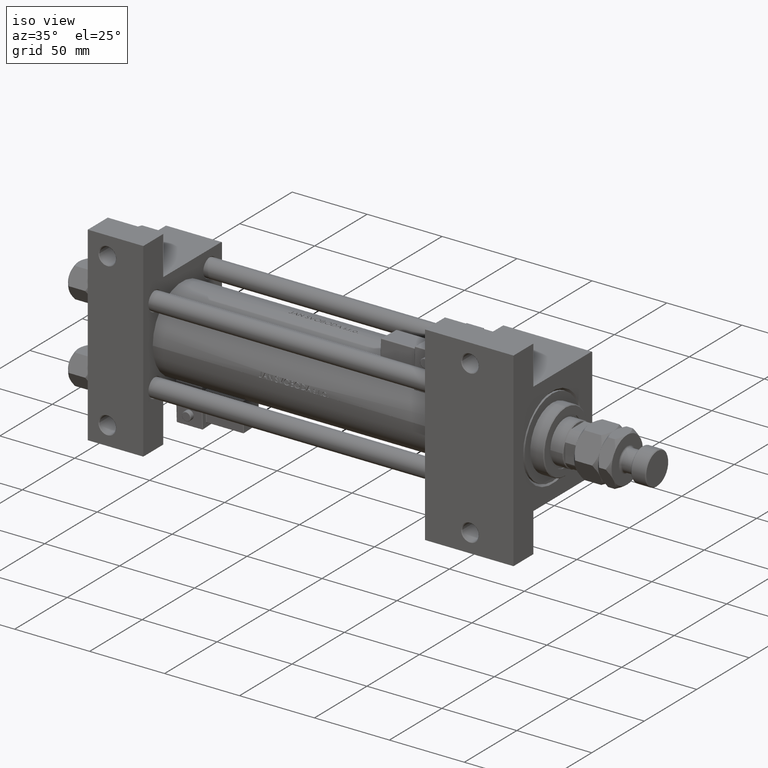
[diagram: clean part render]
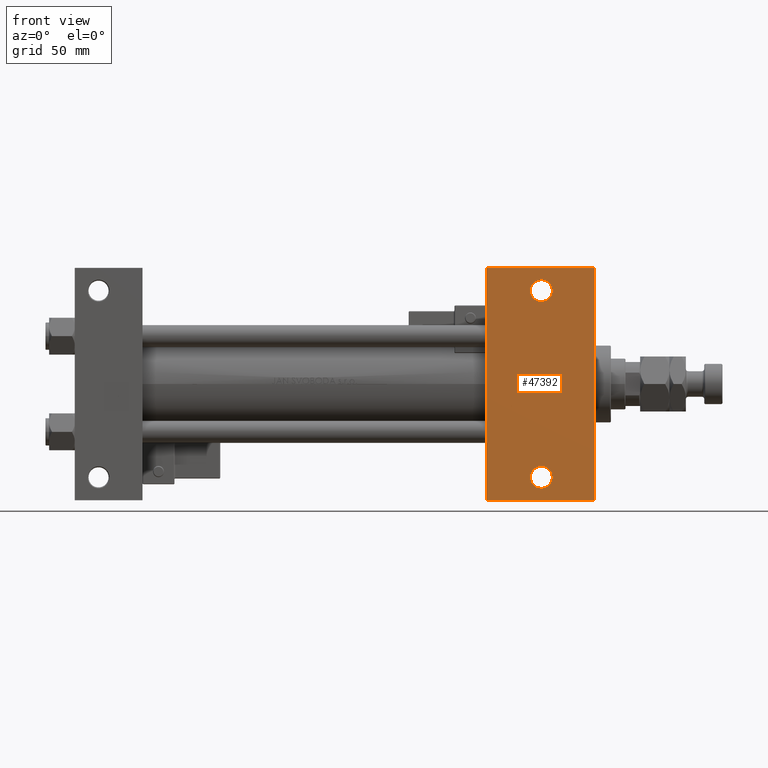
[diagram: tour spotlight — one face highlighted and labeled with its STEP entity id]
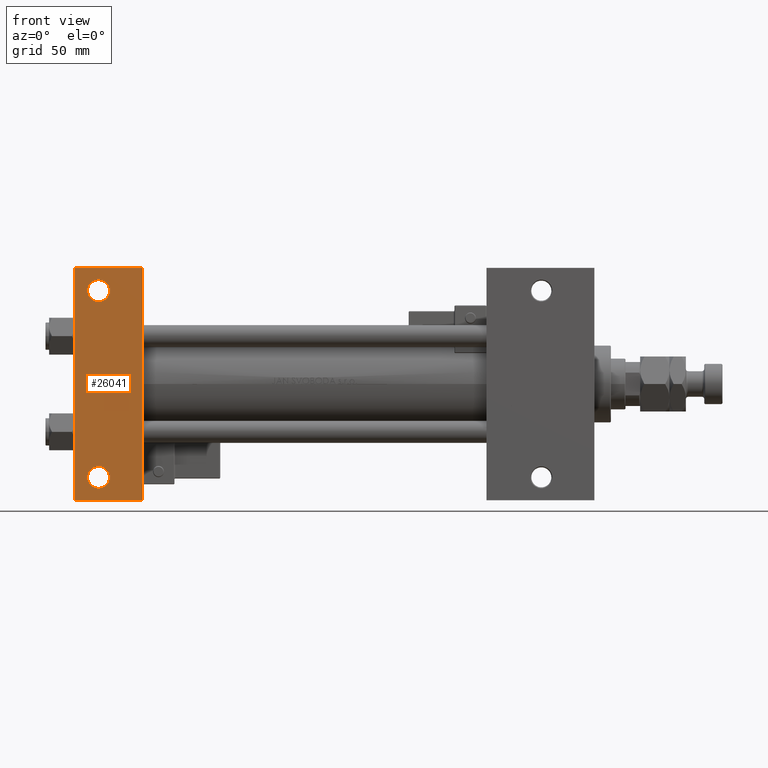
[diagram: tour spotlight — one face highlighted and labeled with its STEP entity id]
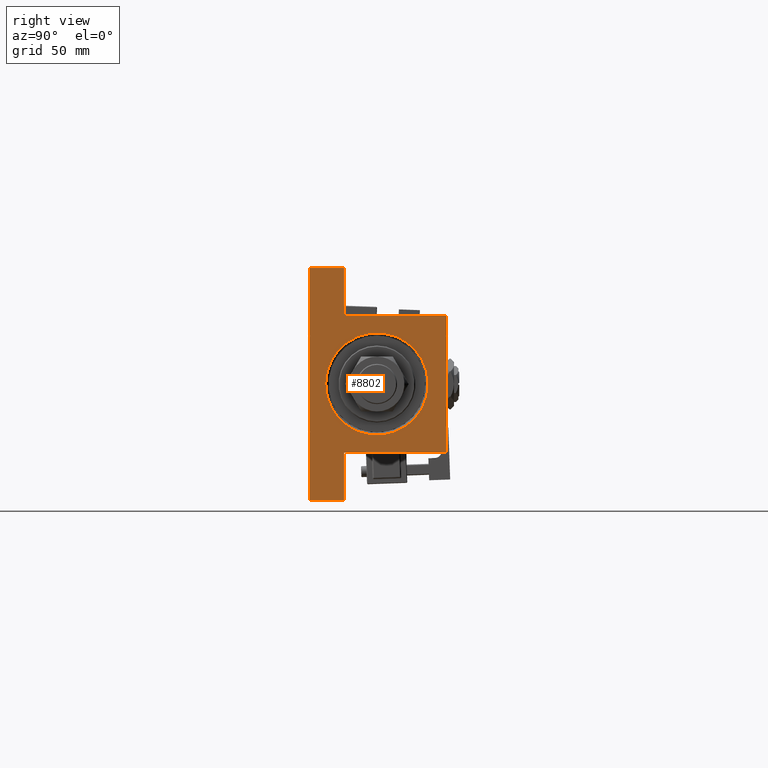
[diagram: tour spotlight — one face highlighted and labeled with its STEP entity id]
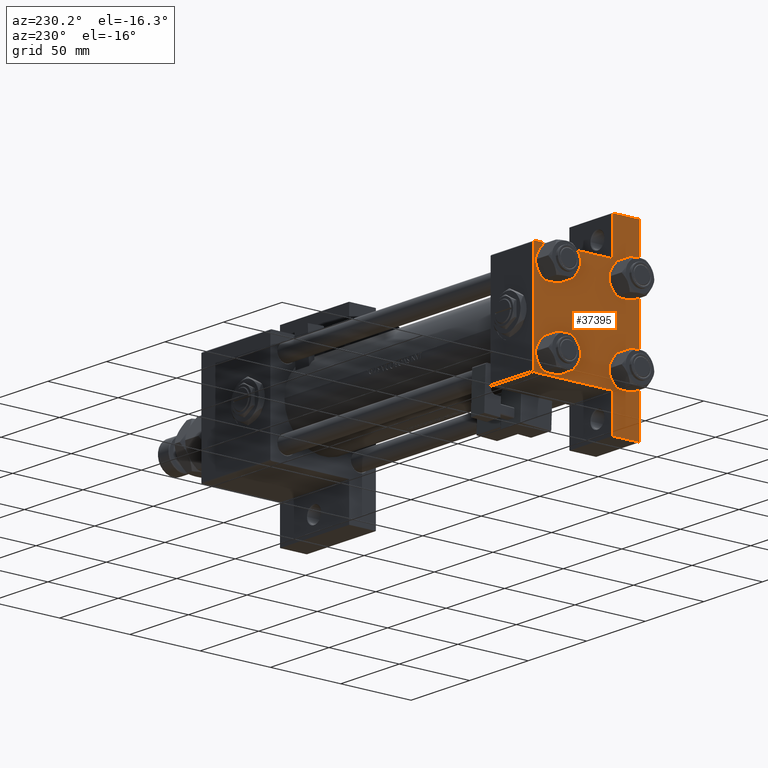
[diagram: tour spotlight — one face highlighted and labeled with its STEP entity id]
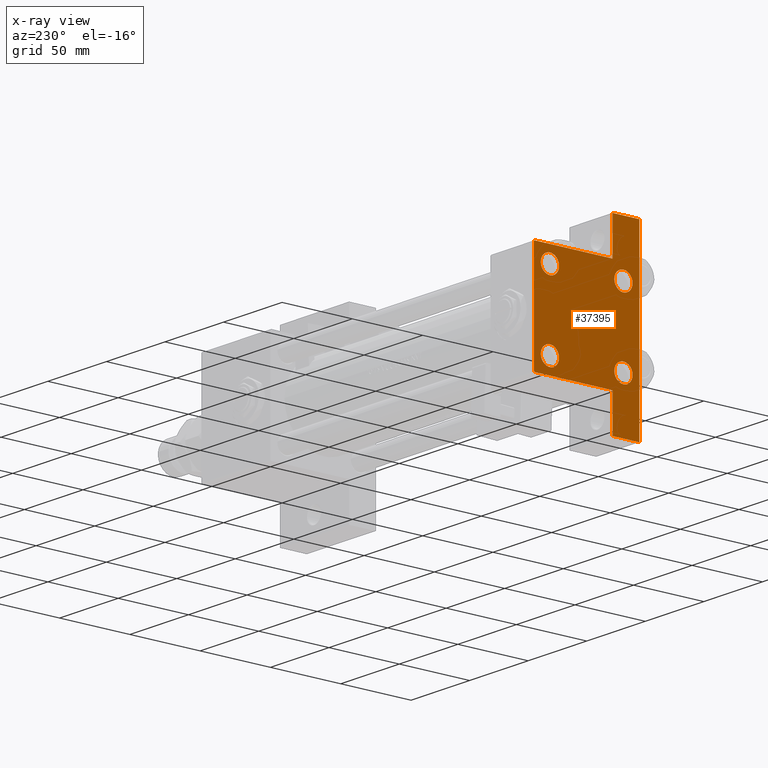
[diagram: x-ray of the same camera — body ghosted, this tour face saturated]
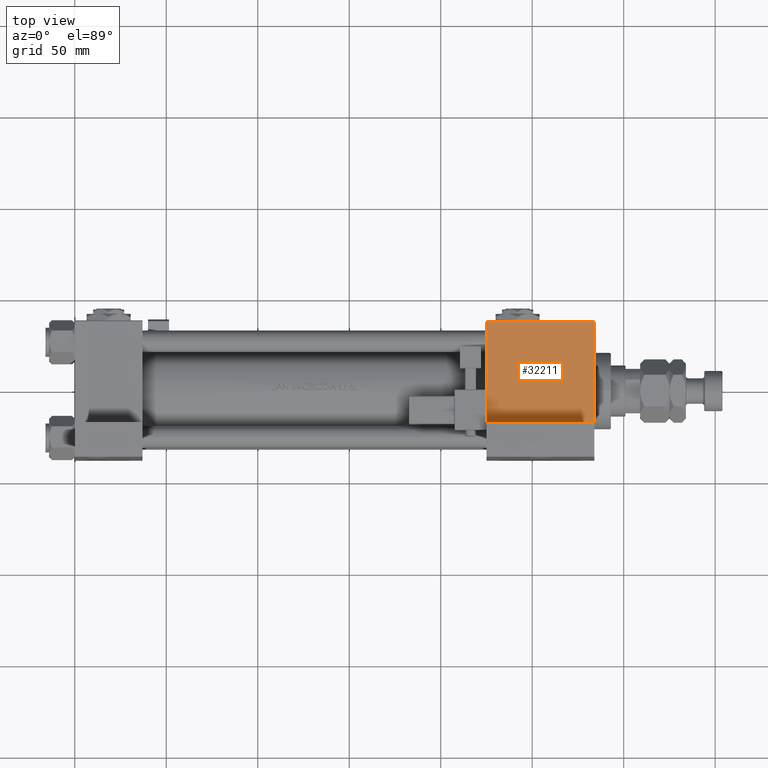
[diagram: tour spotlight — one face highlighted and labeled with its STEP entity id]
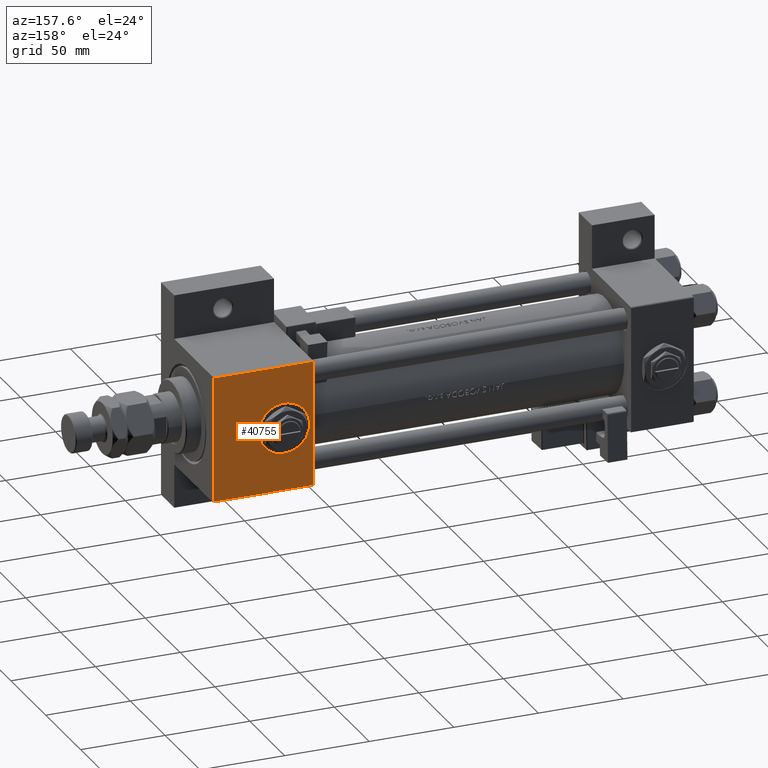
[diagram: tour spotlight — one face highlighted and labeled with its STEP entity id]
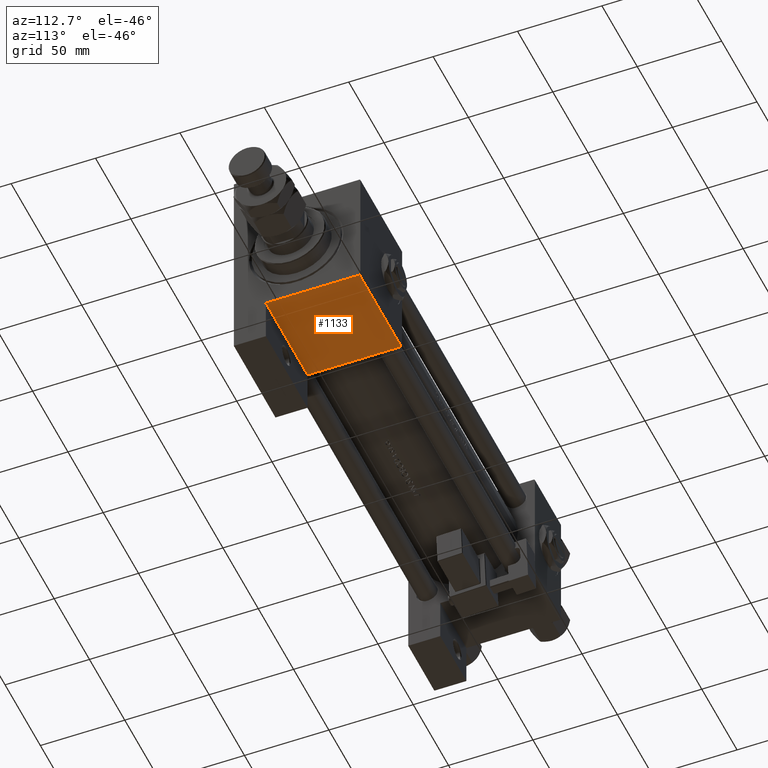
[diagram: tour spotlight — one face highlighted and labeled with its STEP entity id]
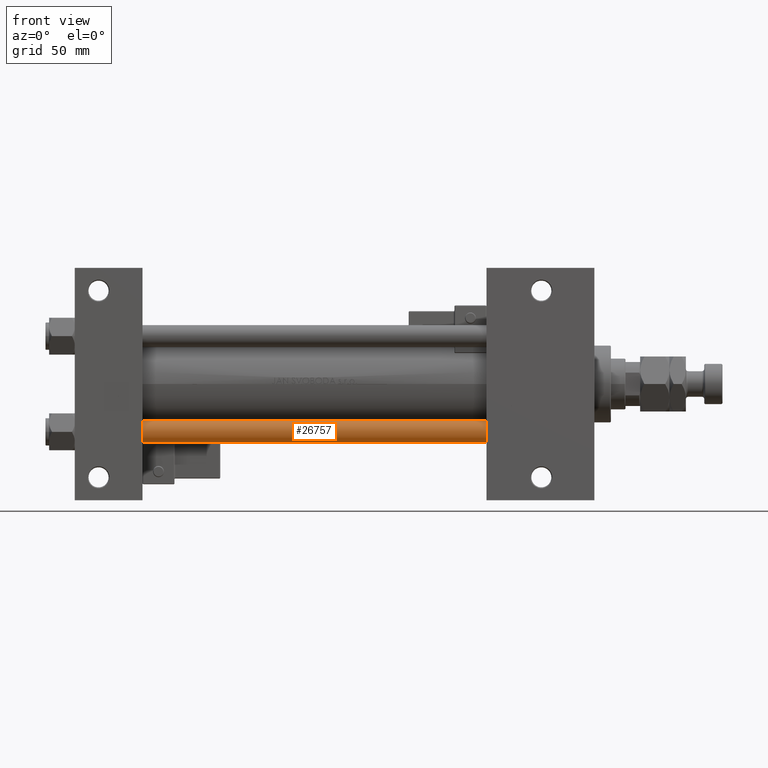
[diagram: tour spotlight — one face highlighted and labeled with its STEP entity id]
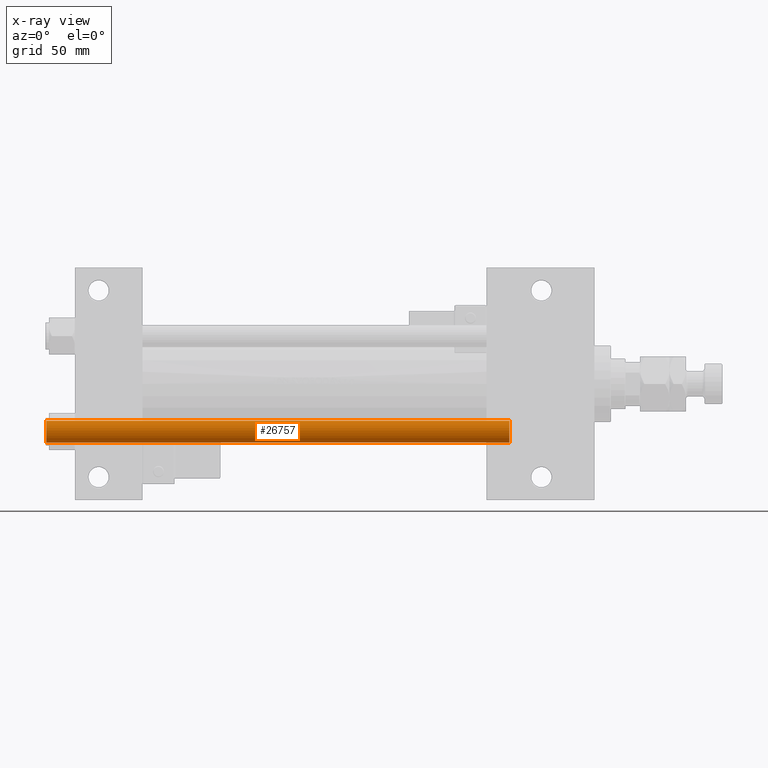
[diagram: x-ray of the same camera — body ghosted, this tour face saturated]
A machine part: a face-by-face anatomy tour. The part has 1378 B-rep faces; the first image is the clean iso view, then the 8 largest visible faces are spotlighted one at a time (largest first), each with its STEP entity span.

Face 1 — front view, entity #47392. In plain terms, the highlighted planar face has unit normal (0, -1, 0).
Definition (entity closure, byte-faithful):
#32 = DIRECTION ( 'NONE',  ( -1.000000000000000000, 0.000000000000000000, 0.000000000000000000 ) ) ;
#74 = EDGE_LOOP ( 'NONE', ( #12143, #51294, #19633, #28781 ) ) ;
#167 = EDGE_LOOP ( 'NONE', ( #16911, #42543 ) ) ;
#186 = EDGE_CURVE ( 'NONE', #19474, #25908, #23796, .T. ) ;
#1146 = CARTESIAN_POINT ( 'NONE',  ( 225.0000000000000284, 63.50000000000000000, -37.50000000000000000 ) ) ;
#1546 = DIRECTION ( 'NONE',  ( -1.000000000000000000, 0.000000000000000000, 0.000000000000000000 ) ) ;
#2528 = LINE ( 'NONE', #47481, #18926 ) ;
#3772 = DIRECTION ( 'NONE',  ( 0.000000000000000000, 0.000000000000000000, -1.000000000000000000 ) ) ;
#3903 = EDGE_CURVE ( 'NONE', #45618, #15442, #31622, .T. ) ;
#7701 = CARTESIAN_POINT ( 'NONE',  ( 225.0000000000000000, -63.50000000000002842, -37.50000000000000000 ) ) ;
#7755 = DIRECTION ( 'NONE',  ( -1.000000000000000000, 0.000000000000000000, 0.000000000000000000 ) ) ;
#8072 = DIRECTION ( 'NONE',  ( 0.000000000000000000, -1.000000000000000000, 0.000000000000000000 ) ) ;
#8718 = CARTESIAN_POINT ( 'NONE',  ( 284.0000000000000568, 63.49999999999997158, -37.50000000000000000 ) ) ;
#8978 = VECTOR ( 'NONE', #19254, 1000.000000000000000 ) ;
#9679 = EDGE_LOOP ( 'NONE', ( #43388, #46269 ) ) ;
#10918 = LINE ( 'NONE', #7701, #33197 ) ;
#11285 = CARTESIAN_POINT ( 'NONE',  ( 255.0000000000000000, -51.00000000000000000, -37.50000000000000000 ) ) ;
#11792 = FACE_BOUND ( 'NONE', #9679, .T. ) ;
#11815 = LINE ( 'NONE', #35615, #16241 ) ;
#12143 = ORIENTED_EDGE ( 'NONE', *, *, #21617, .F. ) ;
#12827 = AXIS2_PLACEMENT_3D ( 'NONE', #46233, #33376, #1546 ) ;
#13506 = AXIS2_PLACEMENT_3D ( 'NONE', #49750, #45736, #16320 ) ;
#13992 = CARTESIAN_POINT ( 'NONE',  ( 249.0005000000000166, -51.00000000000000000, -37.50000000000000000 ) ) ;
#15442 = VERTEX_POINT ( 'NONE', #13992 ) ;
#15729 = DIRECTION ( 'NONE',  ( -1.000000000000000000, -0.000000000000000000, -0.000000000000000000 ) ) ;
#16241 = VECTOR ( 'NONE', #8072, 1000.000000000000000 ) ;
#16320 = DIRECTION ( 'NONE',  ( -1.000000000000000000, 0.000000000000000000, 0.000000000000000000 ) ) ;
#16911 = ORIENTED_EDGE ( 'NONE', *, *, #49615, .T. ) ;
#18926 = VECTOR ( 'NONE', #52557, 1000.000000000000000 ) ;
#19254 = DIRECTION ( 'NONE',  ( 0.000000000000000000, -1.000000000000000000, 0.000000000000000000 ) ) ;
#19474 = VERTEX_POINT ( 'NONE', #22081 ) ;
#19600 = AXIS2_PLACEMENT_3D ( 'NONE', #44428, #3772, #40658 ) ;
#19633 = ORIENTED_EDGE ( 'NONE', *, *, #51910, .T. ) ;
#21617 = EDGE_CURVE ( 'NONE', #26246, #30018, #48689, .T. ) ;
#22081 = CARTESIAN_POINT ( 'NONE',  ( 249.0005000000000166, 51.00000000000000000, -37.50000000000000000 ) ) ;
#23796 = CIRCLE ( 'NONE', #13506, 5.999499999999990507 ) ;
#24327 = PLANE ( 'NONE',  #19600 ) ;
#25691 = CIRCLE ( 'NONE', #40244, 5.999499999999990507 ) ;
#25908 = VERTEX_POINT ( 'NONE', #43048 ) ;
#26246 = VERTEX_POINT ( 'NONE', #1146 ) ;
#26702 = EDGE_CURVE ( 'NONE', #25908, #19474, #32107, .T. ) ;
#26935 = AXIS2_PLACEMENT_3D ( 'NONE', #52698, #44657, #7755 ) ;
#28098 = DIRECTION ( 'NONE',  ( -0.000000000000000000, -0.000000000000000000, 1.000000000000000000 ) ) ;
#28352 = FACE_OUTER_BOUND ( 'NONE', #74, .T. ) ;
#28781 = ORIENTED_EDGE ( 'NONE', *, *, #33466, .T. ) ;
#29024 = CARTESIAN_POINT ( 'NONE',  ( 225.0000000000000000, -63.50000000000002842, -37.50000000000000000 ) ) ;
#29708 = CARTESIAN_POINT ( 'NONE',  ( 284.0000000000000568, -63.50000000000002842, -37.50000000000000000 ) ) ;
#30018 = VERTEX_POINT ( 'NONE', #29024 ) ;
#31622 = CIRCLE ( 'NONE', #12827, 5.999499999999990507 ) ;
#32107 = CIRCLE ( 'NONE', #26935, 5.999499999999990507 ) ;
#32320 = VERTEX_POINT ( 'NONE', #29708 ) ;
#33197 = VECTOR ( 'NONE', #15729, 1000.000000000000000 ) ;
#33376 = DIRECTION ( 'NONE',  ( -0.000000000000000000, -0.000000000000000000, 1.000000000000000000 ) ) ;
#33466 = EDGE_CURVE ( 'NONE', #32320, #30018, #10918, .T. ) ;
#35615 = CARTESIAN_POINT ( 'NONE',  ( 284.0000000000000568, 37.50000000000000000, -37.50000000000000000 ) ) ;
#36968 = VERTEX_POINT ( 'NONE', #8718 ) ;
#40244 = AXIS2_PLACEMENT_3D ( 'NONE', #11285, #28098, #32 ) ;
#40658 = DIRECTION ( 'NONE',  ( -1.000000000000000000, 0.000000000000000000, -0.000000000000000000 ) ) ;
#42543 = ORIENTED_EDGE ( 'NONE', *, *, #3903, .T. ) ;
#42852 = EDGE_CURVE ( 'NONE', #26246, #36968, #2528, .T. ) ;
#43048 = CARTESIAN_POINT ( 'NONE',  ( 260.9995000000000118, 51.00000000000000000, -37.50000000000000000 ) ) ;
#43388 = ORIENTED_EDGE ( 'NONE', *, *, #186, .T. ) ;
#44428 = CARTESIAN_POINT ( 'NONE',  ( 284.0000000000000568, 37.50000000000000000, -37.50000000000000000 ) ) ;
#44657 = DIRECTION ( 'NONE',  ( -0.000000000000000000, -0.000000000000000000, 1.000000000000000000 ) ) ;
#45585 = CARTESIAN_POINT ( 'NONE',  ( 260.9995000000000118, -51.00000000000000000, -37.50000000000000000 ) ) ;
#45618 = VERTEX_POINT ( 'NONE', #45585 ) ;
#45736 = DIRECTION ( 'NONE',  ( -0.000000000000000000, -0.000000000000000000, 1.000000000000000000 ) ) ;
#46233 = CARTESIAN_POINT ( 'NONE',  ( 255.0000000000000000, -51.00000000000000000, -37.50000000000000000 ) ) ;
#46269 = ORIENTED_EDGE ( 'NONE', *, *, #26702, .T. ) ;
#47392 = ADVANCED_FACE ( 'NONE', ( #11792, #48712, #28352 ), #24327, .T. ) ;
#47481 = CARTESIAN_POINT ( 'NONE',  ( 225.0000000000000284, 63.50000000000000000, -37.50000000000000000 ) ) ;
#47897 = CARTESIAN_POINT ( 'NONE',  ( 225.0000000000000000, 37.50000000000000000, -37.50000000000000000 ) ) ;
#48689 = LINE ( 'NONE', #47897, #8978 ) ;
#48712 = FACE_BOUND ( 'NONE', #167, .T. ) ;
#49615 = EDGE_CURVE ( 'NONE', #15442, #45618, #25691, .T. ) ;
#49750 = CARTESIAN_POINT ( 'NONE',  ( 255.0000000000000000, 51.00000000000000000, -37.50000000000000000 ) ) ;
#51294 = ORIENTED_EDGE ( 'NONE', *, *, #42852, .T. ) ;
#51910 = EDGE_CURVE ( 'NONE', #36968, #32320, #11815, .T. ) ;
#52557 = DIRECTION ( 'NONE',  ( 1.000000000000000000, -4.704334850106595794E-16, 0.000000000000000000 ) ) ;
#52698 = CARTESIAN_POINT ( 'NONE',  ( 255.0000000000000000, 51.00000000000000000, -37.50000000000000000 ) ) ;

Face 2 — front view, entity #26041. In plain terms, the highlighted planar face has unit normal (0, -1, -0).
Definition (entity closure, byte-faithful):
#136 = AXIS2_PLACEMENT_3D ( 'NONE', #28142, #32683, #33193 ) ;
#469 = DIRECTION ( 'NONE',  ( 0.000000000000000000, 1.000000000000000000, 0.000000000000000000 ) ) ;
#2412 = EDGE_LOOP ( 'NONE', ( #13057, #4012 ) ) ;
#4012 = ORIENTED_EDGE ( 'NONE', *, *, #41375, .T. ) ;
#4170 = VERTEX_POINT ( 'NONE', #32014 ) ;
#4280 = VECTOR ( 'NONE', #29662, 1000.000000000000000 ) ;
#4486 = CARTESIAN_POINT ( 'NONE',  ( 12.99999999999999822, 50.99999999999997868, -37.50000000000000000 ) ) ;
#4629 = CIRCLE ( 'NONE', #32825, 5.999499999999907907 ) ;
#5586 = CARTESIAN_POINT ( 'NONE',  ( 7.000500000000090317, 50.99999999999997868, -37.50000000000000000 ) ) ;
#5593 = CARTESIAN_POINT ( 'NONE',  ( 37.00000000000001421, 63.50000000000000000, -37.50000000000002132 ) ) ;
#6231 = ORIENTED_EDGE ( 'NONE', *, *, #17479, .T. ) ;
#8796 = EDGE_LOOP ( 'NONE', ( #47439, #6231, #19967, #42008 ) ) ;
#9614 = EDGE_CURVE ( 'NONE', #38967, #40160, #51420, .T. ) ;
#11691 = CARTESIAN_POINT ( 'NONE',  ( 37.00000000000000000, 37.49999999999999289, -37.50000000000000000 ) ) ;
#12557 = LINE ( 'NONE', #28858, #23859 ) ;
#12997 = CARTESIAN_POINT ( 'NONE',  ( 18.99949999999990524, -51.00000000000002842, -37.50000000000000711 ) ) ;
#13057 = ORIENTED_EDGE ( 'NONE', *, *, #40193, .T. ) ;
#15795 = DIRECTION ( 'NONE',  ( 0.000000000000000000, 1.000000000000000000, 0.000000000000000000 ) ) ;
#15800 = LINE ( 'NONE', #32359, #32294 ) ;
#16115 = EDGE_CURVE ( 'NONE', #40160, #38967, #4629, .T. ) ;
#16936 = CARTESIAN_POINT ( 'NONE',  ( 1.595073532467135441E-14, 63.50000000000000000, -37.50000000000002132 ) ) ;
#17313 = FACE_BOUND ( 'NONE', #29550, .T. ) ;
#17479 = EDGE_CURVE ( 'NONE', #45571, #28698, #41650, .T. ) ;
#19967 = ORIENTED_EDGE ( 'NONE', *, *, #36261, .T. ) ;
#20569 = DIRECTION ( 'NONE',  ( -0.000000000000000000, -9.251858538542972814E-17, 1.000000000000000000 ) ) ;
#23859 = VECTOR ( 'NONE', #24845, 1000.000000000000000 ) ;
#24845 = DIRECTION ( 'NONE',  ( -1.000000000000000000, -0.000000000000000000, -0.000000000000000000 ) ) ;
#26041 = ADVANCED_FACE ( 'NONE', ( #38978, #17313, #33623 ), #49963, .T. ) ;
#27358 = CIRCLE ( 'NONE', #43633, 5.999499999999907907 ) ;
#28142 = CARTESIAN_POINT ( 'NONE',  ( 12.99999999999999822, -51.00000000000002842, -37.50000000000000711 ) ) ;
#28200 = AXIS2_PLACEMENT_3D ( 'NONE', #44144, #20569, #15795 ) ;
#28698 = VERTEX_POINT ( 'NONE', #5593 ) ;
#28858 = CARTESIAN_POINT ( 'NONE',  ( 3.977209754999747208E-16, -63.50000000000000000, -37.49999999999999289 ) ) ;
#29550 = EDGE_LOOP ( 'NONE', ( #42061, #34511 ) ) ;
#29662 = DIRECTION ( 'NONE',  ( 0.000000000000000000, -1.000000000000000000, -9.251858538542972814E-17 ) ) ;
#30463 = LINE ( 'NONE', #42773, #4280 ) ;
#30497 = CARTESIAN_POINT ( 'NONE',  ( 7.000500000000090317, -51.00000000000002842, -37.50000000000000711 ) ) ;
#31203 = DIRECTION ( 'NONE',  ( 0.000000000000000000, 9.251858538542972814E-17, -1.000000000000000000 ) ) ;
#31633 = EDGE_CURVE ( 'NONE', #45571, #4170, #15800, .T. ) ;
#32014 = CARTESIAN_POINT ( 'NONE',  ( 3.977209754999747208E-16, -63.50000000000000000, -37.49999999999999289 ) ) ;
#32269 = CARTESIAN_POINT ( 'NONE',  ( 18.99949999999990524, 50.99999999999997868, -37.50000000000000000 ) ) ;
#32294 = VECTOR ( 'NONE', #48448, 1000.000000000000000 ) ;
#32359 = CARTESIAN_POINT ( 'NONE',  ( 0.000000000000000000, 37.49999999999999289, -37.50000000000000000 ) ) ;
#32683 = DIRECTION ( 'NONE',  ( -0.000000000000000000, -9.251858538542972814E-17, 1.000000000000000000 ) ) ;
#32825 = AXIS2_PLACEMENT_3D ( 'NONE', #46859, #34263, #42834 ) ;
#33193 = DIRECTION ( 'NONE',  ( 0.000000000000000000, 1.000000000000000000, 0.000000000000000000 ) ) ;
#33619 = CARTESIAN_POINT ( 'NONE',  ( 1.595073532467135441E-14, 63.50000000000000000, -37.50000000000002132 ) ) ;
#33623 = FACE_OUTER_BOUND ( 'NONE', #8796, .T. ) ;
#34180 = EDGE_CURVE ( 'NONE', #38606, #4170, #12557, .T. ) ;
#34263 = DIRECTION ( 'NONE',  ( -0.000000000000000000, -9.251858538542972814E-17, 1.000000000000000000 ) ) ;
#34511 = ORIENTED_EDGE ( 'NONE', *, *, #9614, .T. ) ;
#35162 = VERTEX_POINT ( 'NONE', #5586 ) ;
#36261 = EDGE_CURVE ( 'NONE', #28698, #38606, #30463, .T. ) ;
#36284 = VECTOR ( 'NONE', #37629, 1000.000000000000000 ) ;
#37082 = DIRECTION ( 'NONE',  ( -0.000000000000000000, -9.251858538542972814E-17, 1.000000000000000000 ) ) ;
#37629 = DIRECTION ( 'NONE',  ( 1.000000000000000000, 0.000000000000000000, 0.000000000000000000 ) ) ;
#38606 = VERTEX_POINT ( 'NONE', #41489 ) ;
#38967 = VERTEX_POINT ( 'NONE', #12997 ) ;
#38978 = FACE_BOUND ( 'NONE', #2412, .T. ) ;
#39011 = VERTEX_POINT ( 'NONE', #32269 ) ;
#39777 = DIRECTION ( 'NONE',  ( 0.000000000000000000, 1.000000000000000000, 9.251858538542972814E-17 ) ) ;
#40160 = VERTEX_POINT ( 'NONE', #30497 ) ;
#40193 = EDGE_CURVE ( 'NONE', #35162, #39011, #51283, .T. ) ;
#41375 = EDGE_CURVE ( 'NONE', #39011, #35162, #27358, .T. ) ;
#41489 = CARTESIAN_POINT ( 'NONE',  ( 37.00000000000000000, -63.50000000000000000, -37.49999999999999289 ) ) ;
#41650 = LINE ( 'NONE', #33619, #36284 ) ;
#42008 = ORIENTED_EDGE ( 'NONE', *, *, #34180, .T. ) ;
#42061 = ORIENTED_EDGE ( 'NONE', *, *, #16115, .T. ) ;
#42773 = CARTESIAN_POINT ( 'NONE',  ( 37.00000000000000000, 37.49999999999999289, -37.50000000000000000 ) ) ;
#42834 = DIRECTION ( 'NONE',  ( 0.000000000000000000, 1.000000000000000000, 0.000000000000000000 ) ) ;
#43633 = AXIS2_PLACEMENT_3D ( 'NONE', #4486, #37082, #469 ) ;
#44144 = CARTESIAN_POINT ( 'NONE',  ( 12.99999999999999822, 50.99999999999997868, -37.50000000000000000 ) ) ;
#45571 = VERTEX_POINT ( 'NONE', #16936 ) ;
#46859 = CARTESIAN_POINT ( 'NONE',  ( 12.99999999999999822, -51.00000000000002842, -37.50000000000000711 ) ) ;
#47439 = ORIENTED_EDGE ( 'NONE', *, *, #31633, .F. ) ;
#48448 = DIRECTION ( 'NONE',  ( 0.000000000000000000, -1.000000000000000000, -9.251858538542972814E-17 ) ) ;
#49963 = PLANE ( 'NONE',  #52606 ) ;
#51283 = CIRCLE ( 'NONE', #28200, 5.999499999999907907 ) ;
#51420 = CIRCLE ( 'NONE', #136, 5.999499999999907907 ) ;
#52606 = AXIS2_PLACEMENT_3D ( 'NONE', #11691, #31203, #39777 ) ;

Face 3 — right view, entity #8802. In plain terms, the highlighted planar face has unit normal (-1, 0, 0).
Definition (entity closure, byte-faithful):
#303 = VERTEX_POINT ( 'NONE', #18152 ) ;
#499 = CARTESIAN_POINT ( 'NONE',  ( 284.0000000000000568, 63.49999999999997158, -18.50000000000000000 ) ) ;
#1682 = VECTOR ( 'NONE', #41414, 1000.000000000000000 ) ;
#2421 = DIRECTION ( 'NONE',  ( 0.000000000000000000, 0.000000000000000000, 1.000000000000000000 ) ) ;
#2623 = CARTESIAN_POINT ( 'NONE',  ( 284.0000000000000568, 63.49999999999997158, -18.50000000000000000 ) ) ;
#2798 = DIRECTION ( 'NONE',  ( 0.000000000000000000, -9.251858538542972814E-17, -1.000000000000000000 ) ) ;
#2844 = EDGE_CURVE ( 'NONE', #303, #36968, #37915, .T. ) ;
#4489 = VECTOR ( 'NONE', #23919, 1000.000000000000114 ) ;
#4847 = VERTEX_POINT ( 'NONE', #51031 ) ;
#5193 = CARTESIAN_POINT ( 'NONE',  ( 284.0000000000000568, -36.99999999999997158, 37.49999999999997868 ) ) ;
#5815 = VERTEX_POINT ( 'NONE', #18924 ) ;
#6592 = DIRECTION ( 'NONE',  ( -0.000000000000000000, -1.000000000000000000, -0.000000000000000000 ) ) ;
#7164 = CIRCLE ( 'NONE', #50722, 28.00000000000005329 ) ;
#8072 = DIRECTION ( 'NONE',  ( 0.000000000000000000, -1.000000000000000000, 0.000000000000000000 ) ) ;
#8211 = EDGE_CURVE ( 'NONE', #48098, #18920, #31410, .T. ) ;
#8718 = CARTESIAN_POINT ( 'NONE',  ( 284.0000000000000568, 63.49999999999997158, -37.50000000000000000 ) ) ;
#8802 = ADVANCED_FACE ( 'NONE', ( #31552, #22475 ), #38802, .F. ) ;
#9082 = LINE ( 'NONE', #49743, #15335 ) ;
#10173 = ORIENTED_EDGE ( 'NONE', *, *, #18671, .T. ) ;
#10444 = CARTESIAN_POINT ( 'NONE',  ( 284.0000000000000568, 0.000000000000000000, -0.5000000000000004441 ) ) ;
#10814 = CARTESIAN_POINT ( 'NONE',  ( 284.0000000000000568, 0.000000000000000000, -0.5000000000000004441 ) ) ;
#11079 = CARTESIAN_POINT ( 'NONE',  ( 284.0000000000000568, -37.50000000000000000, 36.99999999999995026 ) ) ;
#11681 = ORIENTED_EDGE ( 'NONE', *, *, #32968, .T. ) ;
#11815 = LINE ( 'NONE', #35615, #16241 ) ;
#12821 = DIRECTION ( 'NONE',  ( 0.000000000000000000, 0.000000000000000000, -1.000000000000000000 ) ) ;
#12833 = VERTEX_POINT ( 'NONE', #15733 ) ;
#13446 = DIRECTION ( 'NONE',  ( 0.000000000000000000, -0.7071067811865474617, 0.7071067811865474617 ) ) ;
#14257 = LINE ( 'NONE', #45839, #38086 ) ;
#15280 = CARTESIAN_POINT ( 'NONE',  ( 284.0000000000000568, 37.50000000000000000, 37.49999999999999289 ) ) ;
#15335 = VECTOR ( 'NONE', #12821, 1000.000000000000000 ) ;
#15575 = EDGE_LOOP ( 'NONE', ( #10173, #16097 ) ) ;
#15733 = CARTESIAN_POINT ( 'NONE',  ( 284.0000000000000568, 37.50000000000000000, 36.99999999999993605 ) ) ;
#16097 = ORIENTED_EDGE ( 'NONE', *, *, #44108, .T. ) ;
#16241 = VECTOR ( 'NONE', #8072, 1000.000000000000000 ) ;
#16981 = EDGE_CURVE ( 'NONE', #12833, #52814, #33216, .T. ) ;
#18152 = CARTESIAN_POINT ( 'NONE',  ( 284.0000000000000568, 63.49999999999997158, -18.50000000000000000 ) ) ;
#18385 = LINE ( 'NONE', #2623, #41433 ) ;
#18412 = ORIENTED_EDGE ( 'NONE', *, *, #27625, .T. ) ;
#18505 = CARTESIAN_POINT ( 'NONE',  ( 284.0000000000000568, 37.49999999999995026, -18.50000000000000000 ) ) ;
#18671 = EDGE_CURVE ( 'NONE', #51249, #25551, #7164, .T. ) ;
#18920 = VERTEX_POINT ( 'NONE', #11079 ) ;
#18924 = CARTESIAN_POINT ( 'NONE',  ( 284.0000000000000568, -63.50000000000002842, -18.50000000000000000 ) ) ;
#19142 = CARTESIAN_POINT ( 'NONE',  ( 284.0000000000000568, -63.50000000000002842, -18.50000000000000000 ) ) ;
#19239 = EDGE_CURVE ( 'NONE', #47541, #48098, #47668, .T. ) ;
#19872 = EDGE_CURVE ( 'NONE', #18920, #4847, #24167, .T. ) ;
#20608 = ORIENTED_EDGE ( 'NONE', *, *, #19239, .T. ) ;
#21432 = ORIENTED_EDGE ( 'NONE', *, *, #19872, .T. ) ;
#21962 = EDGE_CURVE ( 'NONE', #303, #52814, #18385, .T. ) ;
#22232 = CARTESIAN_POINT ( 'NONE',  ( 284.0000000000000568, 3.429011037612595587E-15, 27.50000000000005329 ) ) ;
#22339 = CIRCLE ( 'NONE', #48018, 28.00000000000005329 ) ;
#22475 = FACE_OUTER_BOUND ( 'NONE', #41024, .T. ) ;
#22985 = DIRECTION ( 'NONE',  ( 0.000000000000000000, 0.000000000000000000, 1.000000000000000000 ) ) ;
#23488 = CARTESIAN_POINT ( 'NONE',  ( 284.0000000000000568, 36.99999999999994316, 37.49999999999999289 ) ) ;
#23919 = DIRECTION ( 'NONE',  ( -0.000000000000000000, -0.7071067811865474617, -0.7071067811865474617 ) ) ;
#24167 = LINE ( 'NONE', #28175, #31090 ) ;
#25551 = VERTEX_POINT ( 'NONE', #22232 ) ;
#26301 = VECTOR ( 'NONE', #6592, 1000.000000000000000 ) ;
#26470 = CARTESIAN_POINT ( 'NONE',  ( 284.0000000000000568, 0.000000000000000000, 0.000000000000000000 ) ) ;
#26725 = DIRECTION ( 'NONE',  ( -1.000000000000000000, -0.000000000000000000, 0.000000000000000000 ) ) ;
#27625 = EDGE_CURVE ( 'NONE', #12833, #47541, #14257, .T. ) ;
#28175 = CARTESIAN_POINT ( 'NONE',  ( 284.0000000000000568, -37.50000000000000000, 37.49999999999997868 ) ) ;
#29708 = CARTESIAN_POINT ( 'NONE',  ( 284.0000000000000568, -63.50000000000002842, -37.50000000000000000 ) ) ;
#30180 = ORIENTED_EDGE ( 'NONE', *, *, #16981, .F. ) ;
#31090 = VECTOR ( 'NONE', #2798, 1000.000000000000000 ) ;
#31326 = DIRECTION ( 'NONE',  ( 0.000000000000000000, -1.000000000000000000, -1.850371707708594316E-16 ) ) ;
#31410 = LINE ( 'NONE', #35691, #4489 ) ;
#31552 = FACE_BOUND ( 'NONE', #15575, .T. ) ;
#32320 = VERTEX_POINT ( 'NONE', #29708 ) ;
#32968 = EDGE_CURVE ( 'NONE', #4847, #5815, #51541, .T. ) ;
#33216 = LINE ( 'NONE', #38027, #43104 ) ;
#33565 = ORIENTED_EDGE ( 'NONE', *, *, #2844, .F. ) ;
#35615 = CARTESIAN_POINT ( 'NONE',  ( 284.0000000000000568, 37.50000000000000000, -37.50000000000000000 ) ) ;
#35691 = CARTESIAN_POINT ( 'NONE',  ( 284.0000000000000568, -37.50000000000000000, 36.99999999999995026 ) ) ;
#36968 = VERTEX_POINT ( 'NONE', #8718 ) ;
#37796 = AXIS2_PLACEMENT_3D ( 'NONE', #26470, #39336, #2421 ) ;
#37915 = LINE ( 'NONE', #499, #1682 ) ;
#37958 = CARTESIAN_POINT ( 'NONE',  ( 284.0000000000000568, 0.000000000000000000, -28.50000000000005329 ) ) ;
#38027 = CARTESIAN_POINT ( 'NONE',  ( 284.0000000000000568, 37.50000000000000000, 37.49999999999999289 ) ) ;
#38086 = VECTOR ( 'NONE', #13446, 1000.000000000000114 ) ;
#38802 = PLANE ( 'NONE',  #37796 ) ;
#39336 = DIRECTION ( 'NONE',  ( -1.000000000000000000, -0.000000000000000000, 0.000000000000000000 ) ) ;
#41017 = ORIENTED_EDGE ( 'NONE', *, *, #21962, .T. ) ;
#41024 = EDGE_LOOP ( 'NONE', ( #30180, #18412, #20608, #47152, #21432, #11681, #45518, #49438, #33565, #41017 ) ) ;
#41315 = VECTOR ( 'NONE', #31326, 1000.000000000000000 ) ;
#41414 = DIRECTION ( 'NONE',  ( 0.000000000000000000, 0.000000000000000000, -1.000000000000000000 ) ) ;
#41433 = VECTOR ( 'NONE', #51311, 1000.000000000000000 ) ;
#42614 = DIRECTION ( 'NONE',  ( 0.000000000000000000, 0.000000000000000000, 1.000000000000000000 ) ) ;
#43104 = VECTOR ( 'NONE', #49311, 1000.000000000000000 ) ;
#44108 = EDGE_CURVE ( 'NONE', #25551, #51249, #22339, .T. ) ;
#45518 = ORIENTED_EDGE ( 'NONE', *, *, #46699, .T. ) ;
#45839 = CARTESIAN_POINT ( 'NONE',  ( 284.0000000000000568, 36.99999999999994316, 37.49999999999999289 ) ) ;
#46699 = EDGE_CURVE ( 'NONE', #5815, #32320, #9082, .T. ) ;
#47152 = ORIENTED_EDGE ( 'NONE', *, *, #8211, .T. ) ;
#47541 = VERTEX_POINT ( 'NONE', #23488 ) ;
#47668 = LINE ( 'NONE', #15280, #41315 ) ;
#48018 = AXIS2_PLACEMENT_3D ( 'NONE', #10444, #26725, #22985 ) ;
#48098 = VERTEX_POINT ( 'NONE', #5193 ) ;
#49311 = DIRECTION ( 'NONE',  ( 0.000000000000000000, 0.000000000000000000, -1.000000000000000000 ) ) ;
#49438 = ORIENTED_EDGE ( 'NONE', *, *, #51910, .F. ) ;
#49743 = CARTESIAN_POINT ( 'NONE',  ( 284.0000000000000568, -63.50000000000002842, -18.50000000000000000 ) ) ;
#50722 = AXIS2_PLACEMENT_3D ( 'NONE', #10814, #50939, #42614 ) ;
#50939 = DIRECTION ( 'NONE',  ( -1.000000000000000000, -0.000000000000000000, 0.000000000000000000 ) ) ;
#51031 = CARTESIAN_POINT ( 'NONE',  ( 284.0000000000000568, -37.50000000000000711, -18.50000000000000355 ) ) ;
#51249 = VERTEX_POINT ( 'NONE', #37958 ) ;
#51311 = DIRECTION ( 'NONE',  ( 0.000000000000000000, -1.000000000000000000, 0.000000000000000000 ) ) ;
#51541 = LINE ( 'NONE', #19142, #26301 ) ;
#51910 = EDGE_CURVE ( 'NONE', #36968, #32320, #11815, .T. ) ;
#52814 = VERTEX_POINT ( 'NONE', #18505 ) ;

Face 4 — auxiliary view, entity #37395. An x-ray twin of the same camera follows (body ghosted, this face saturated) — the face is partly hidden behind the body. In plain terms, the highlighted planar face has unit normal (-1, 0, -0).
Definition (entity closure, byte-faithful):
#782 = VERTEX_POINT ( 'NONE', #36719 ) ;
#918 = DIRECTION ( 'NONE',  ( -2.877097866686192789E-16, -1.000000000000000000, 0.000000000000000000 ) ) ;
#1394 = DIRECTION ( 'NONE',  ( 1.000000000000000000, -0.000000000000000000, 0.000000000000000000 ) ) ;
#1465 = CARTESIAN_POINT ( 'NONE',  ( 3.977209754999744250E-16, -63.49999999999998579, -18.50000000000000355 ) ) ;
#1815 = CIRCLE ( 'NONE', #19757, 6.500000000000015987 ) ;
#2251 = CARTESIAN_POINT ( 'NONE',  ( 0.000000000000000000, 37.49999999999999289, 37.00000000000000000 ) ) ;
#2411 = CARTESIAN_POINT ( 'NONE',  ( 0.000000000000000000, -26.14999999999999147, 26.15000000000000924 ) ) ;
#2554 = DIRECTION ( 'NONE',  ( 0.000000000000000000, 0.000000000000000000, 1.000000000000000000 ) ) ;
#2594 = CARTESIAN_POINT ( 'NONE',  ( 0.000000000000000000, 36.99999999999999289, 37.50000000000000000 ) ) ;
#2599 = ORIENTED_EDGE ( 'NONE', *, *, #24702, .F. ) ;
#3483 = AXIS2_PLACEMENT_3D ( 'NONE', #11065, #48518, #24846 ) ;
#3580 = LINE ( 'NONE', #27085, #30421 ) ;
#4170 = VERTEX_POINT ( 'NONE', #32014 ) ;
#4776 = AXIS2_PLACEMENT_3D ( 'NONE', #26452, #22721, #43317 ) ;
#5106 = CARTESIAN_POINT ( 'NONE',  ( 0.000000000000000000, -26.14999999999999147, 32.65000000000003411 ) ) ;
#7539 = ORIENTED_EDGE ( 'NONE', *, *, #15686, .T. ) ;
#7874 = CARTESIAN_POINT ( 'NONE',  ( 0.000000000000000000, 37.24999999999999289, 37.24999999999999289 ) ) ;
#8664 = LINE ( 'NONE', #36484, #41078 ) ;
#8902 = CIRCLE ( 'NONE', #44812, 6.500000000000015987 ) ;
#9058 = VERTEX_POINT ( 'NONE', #21857 ) ;
#10616 = LINE ( 'NONE', #26897, #49910 ) ;
#11065 = CARTESIAN_POINT ( 'NONE',  ( 0.000000000000000000, 26.14999999999999858, 26.15000000000000213 ) ) ;
#11331 = CARTESIAN_POINT ( 'NONE',  ( 0.000000000000000000, -26.14999999999999147, 19.64999999999999147 ) ) ;
#11357 = LINE ( 'NONE', #7874, #35433 ) ;
#11517 = VERTEX_POINT ( 'NONE', #5106 ) ;
#11814 = DIRECTION ( 'NONE',  ( 0.000000000000000000, -1.000000000000000000, -9.251858538542971581E-17 ) ) ;
#12018 = PLANE ( 'NONE',  #35077 ) ;
#12782 = FACE_BOUND ( 'NONE', #26117, .T. ) ;
#13240 = AXIS2_PLACEMENT_3D ( 'NONE', #40716, #28911, #2554 ) ;
#13576 = ORIENTED_EDGE ( 'NONE', *, *, #16404, .T. ) ;
#14783 = CARTESIAN_POINT ( 'NONE',  ( 3.977209754999747208E-16, -63.49999999999998579, 26.72167621838007889 ) ) ;
#15312 = VECTOR ( 'NONE', #918, 1000.000000000000000 ) ;
#15627 = DIRECTION ( 'NONE',  ( 0.000000000000000000, 0.7071067811865474617, -0.7071067811865474617 ) ) ;
#15686 = EDGE_CURVE ( 'NONE', #40248, #47630, #8902, .T. ) ;
#15731 = DIRECTION ( 'NONE',  ( 1.000000000000000000, -0.000000000000000000, 0.000000000000000000 ) ) ;
#15800 = LINE ( 'NONE', #32359, #32294 ) ;
#16269 = ORIENTED_EDGE ( 'NONE', *, *, #30072, .F. ) ;
#16404 = EDGE_CURVE ( 'NONE', #20874, #43101, #10616, .T. ) ;
#16731 = EDGE_CURVE ( 'NONE', #29029, #41951, #11357, .T. ) ;
#16936 = CARTESIAN_POINT ( 'NONE',  ( 1.595073532467135441E-14, 63.50000000000000000, -37.50000000000002132 ) ) ;
#17163 = EDGE_CURVE ( 'NONE', #29029, #43101, #19293, .T. ) ;
#17239 = CARTESIAN_POINT ( 'NONE',  ( 0.000000000000000000, 26.14999999999999858, -26.15000000000000213 ) ) ;
#17580 = VERTEX_POINT ( 'NONE', #51820 ) ;
#17689 = DIRECTION ( 'NONE',  ( 0.000000000000000000, 0.000000000000000000, 1.000000000000000000 ) ) ;
#17903 = DIRECTION ( 'NONE',  ( 1.000000000000000000, -0.000000000000000000, 0.000000000000000000 ) ) ;
#18221 = DIRECTION ( 'NONE',  ( 0.000000000000000000, -1.734723475976806848E-16, -1.000000000000000000 ) ) ;
#18801 = ORIENTED_EDGE ( 'NONE', *, *, #31633, .T. ) ;
#19293 = LINE ( 'NONE', #28378, #34545 ) ;
#19323 = VERTEX_POINT ( 'NONE', #36406 ) ;
#19757 = AXIS2_PLACEMENT_3D ( 'NONE', #45812, #1394, #17689 ) ;
#20030 = DIRECTION ( 'NONE',  ( -0.000000000000000000, 0.000000000000000000, 1.000000000000000000 ) ) ;
#20056 = CARTESIAN_POINT ( 'NONE',  ( 0.000000000000000000, -26.14999999999999147, -19.64999999999999503 ) ) ;
#20243 = CARTESIAN_POINT ( 'NONE',  ( 0.000000000000000000, 26.14999999999999858, 26.15000000000000213 ) ) ;
#20798 = FACE_BOUND ( 'NONE', #28126, .T. ) ;
#20874 = VERTEX_POINT ( 'NONE', #20928 ) ;
#20928 = CARTESIAN_POINT ( 'NONE',  ( 0.000000000000000000, -37.50000000000000711, 36.99999999999999289 ) ) ;
#21104 = EDGE_LOOP ( 'NONE', ( #30971, #36713 ) ) ;
#21203 = EDGE_CURVE ( 'NONE', #11517, #33689, #29429, .T. ) ;
#21857 = CARTESIAN_POINT ( 'NONE',  ( 0.000000000000000000, 26.14999999999999858, 32.65000000000002700 ) ) ;
#22221 = CIRCLE ( 'NONE', #3483, 6.500000000000023093 ) ;
#22420 = EDGE_CURVE ( 'NONE', #33689, #11517, #36329, .T. ) ;
#22721 = DIRECTION ( 'NONE',  ( 1.000000000000000000, -0.000000000000000000, 0.000000000000000000 ) ) ;
#23661 = ORIENTED_EDGE ( 'NONE', *, *, #21203, .T. ) ;
#24271 = ORIENTED_EDGE ( 'NONE', *, *, #40508, .T. ) ;
#24294 = DIRECTION ( 'NONE',  ( -1.000000000000000000, 0.000000000000000000, -0.000000000000000000 ) ) ;
#24702 = EDGE_CURVE ( 'NONE', #20874, #42441, #3580, .T. ) ;
#24846 = DIRECTION ( 'NONE',  ( 0.000000000000000000, 0.000000000000000000, 1.000000000000000000 ) ) ;
#25074 = FACE_OUTER_BOUND ( 'NONE', #28704, .T. ) ;
#25370 = CARTESIAN_POINT ( 'NONE',  ( 0.000000000000000000, 37.49999999999999289, -18.49999999999999645 ) ) ;
#25382 = ORIENTED_EDGE ( 'NONE', *, *, #22420, .T. ) ;
#26117 = EDGE_LOOP ( 'NONE', ( #7539, #39657 ) ) ;
#26204 = CARTESIAN_POINT ( 'NONE',  ( 0.000000000000000000, -26.14999999999999147, -26.15000000000000924 ) ) ;
#26452 = CARTESIAN_POINT ( 'NONE',  ( 0.000000000000000000, -26.14999999999999147, -26.15000000000000924 ) ) ;
#26554 = LINE ( 'NONE', #34041, #15312 ) ;
#26629 = EDGE_CURVE ( 'NONE', #47630, #40248, #27829, .T. ) ;
#26803 = LINE ( 'NONE', #14783, #28163 ) ;
#26897 = CARTESIAN_POINT ( 'NONE',  ( -0.000000000000000000, -37.25000000000000000, 37.25000000000000000 ) ) ;
#27085 = CARTESIAN_POINT ( 'NONE',  ( 0.000000000000000000, -37.50000000000000711, 37.49999999999999289 ) ) ;
#27707 = VERTEX_POINT ( 'NONE', #29912 ) ;
#27829 = CIRCLE ( 'NONE', #4776, 6.500000000000015987 ) ;
#28126 = EDGE_LOOP ( 'NONE', ( #23661, #25382 ) ) ;
#28163 = VECTOR ( 'NONE', #43130, 1000.000000000000000 ) ;
#28378 = CARTESIAN_POINT ( 'NONE',  ( 0.000000000000000000, 37.49999999999999289, 37.50000000000000000 ) ) ;
#28483 = CARTESIAN_POINT ( 'NONE',  ( 1.595073532467135441E-14, 63.50000000000000000, -18.50000000000000355 ) ) ;
#28704 = EDGE_LOOP ( 'NONE', ( #2599, #13576, #37728, #30459, #35824, #46623, #41064, #18801, #39172, #16269 ) ) ;
#28754 = DIRECTION ( 'NONE',  ( 0.000000000000000000, 0.000000000000000000, 1.000000000000000000 ) ) ;
#28911 = DIRECTION ( 'NONE',  ( 1.000000000000000000, -0.000000000000000000, 0.000000000000000000 ) ) ;
#29029 = VERTEX_POINT ( 'NONE', #2594 ) ;
#29277 = DIRECTION ( 'NONE',  ( 1.000000000000000000, -0.000000000000000000, 0.000000000000000000 ) ) ;
#29353 = FACE_BOUND ( 'NONE', #48312, .T. ) ;
#29429 = CIRCLE ( 'NONE', #51664, 6.500000000000023093 ) ;
#29447 = DIRECTION ( 'NONE',  ( 1.000000000000000000, -0.000000000000000000, 0.000000000000000000 ) ) ;
#29912 = CARTESIAN_POINT ( 'NONE',  ( 3.977209754999747208E-16, -63.50000000000000000, -18.50000000000000355 ) ) ;
#29935 = AXIS2_PLACEMENT_3D ( 'NONE', #20243, #15731, #35773 ) ;
#30020 = AXIS2_PLACEMENT_3D ( 'NONE', #17239, #29277, #28754 ) ;
#30072 = EDGE_CURVE ( 'NONE', #42441, #27707, #38102, .T. ) ;
#30421 = VECTOR ( 'NONE', #47721, 1000.000000000000000 ) ;
#30459 = ORIENTED_EDGE ( 'NONE', *, *, #16731, .T. ) ;
#30861 = VECTOR ( 'NONE', #18221, 1000.000000000000000 ) ;
#30971 = ORIENTED_EDGE ( 'NONE', *, *, #42663, .T. ) ;
#31062 = CARTESIAN_POINT ( 'NONE',  ( 1.595073532467135441E-14, 63.50000000000001421, 26.72167621838005047 ) ) ;
#31633 = EDGE_CURVE ( 'NONE', #45571, #4170, #15800, .T. ) ;
#32014 = CARTESIAN_POINT ( 'NONE',  ( 3.977209754999747208E-16, -63.50000000000000000, -37.49999999999999289 ) ) ;
#32294 = VECTOR ( 'NONE', #48448, 1000.000000000000000 ) ;
#32359 = CARTESIAN_POINT ( 'NONE',  ( 0.000000000000000000, 37.49999999999999289, -37.50000000000000000 ) ) ;
#33361 = FACE_BOUND ( 'NONE', #21104, .T. ) ;
#33460 = DIRECTION ( 'NONE',  ( 0.000000000000000000, 0.000000000000000000, 1.000000000000000000 ) ) ;
#33689 = VERTEX_POINT ( 'NONE', #11331 ) ;
#34041 = CARTESIAN_POINT ( 'NONE',  ( 1.595073532467135757E-14, 63.50000000000001421, -18.50000000000000355 ) ) ;
#34264 = LINE ( 'NONE', #31062, #30861 ) ;
#34545 = VECTOR ( 'NONE', #11814, 1000.000000000000000 ) ;
#34795 = EDGE_CURVE ( 'NONE', #47953, #35089, #26554, .T. ) ;
#35077 = AXIS2_PLACEMENT_3D ( 'NONE', #41148, #24294, #20030 ) ;
#35089 = VERTEX_POINT ( 'NONE', #25370 ) ;
#35433 = VECTOR ( 'NONE', #15627, 1000.000000000000114 ) ;
#35773 = DIRECTION ( 'NONE',  ( 0.000000000000000000, 0.000000000000000000, 1.000000000000000000 ) ) ;
#35824 = ORIENTED_EDGE ( 'NONE', *, *, #38179, .T. ) ;
#35996 = CIRCLE ( 'NONE', #30020, 6.500000000000015987 ) ;
#36329 = CIRCLE ( 'NONE', #13240, 6.500000000000023093 ) ;
#36406 = CARTESIAN_POINT ( 'NONE',  ( 0.000000000000000000, 26.14999999999999858, 19.64999999999998437 ) ) ;
#36484 = CARTESIAN_POINT ( 'NONE',  ( 0.000000000000000000, 37.49999999999999289, 37.50000000000000000 ) ) ;
#36713 = ORIENTED_EDGE ( 'NONE', *, *, #43040, .T. ) ;
#36719 = CARTESIAN_POINT ( 'NONE',  ( 0.000000000000000000, 26.14999999999999858, -32.65000000000001990 ) ) ;
#37395 = ADVANCED_FACE ( 'NONE', ( #20798, #12782, #33361, #29353, #25074 ), #12018, .T. ) ;
#37728 = ORIENTED_EDGE ( 'NONE', *, *, #17163, .F. ) ;
#38102 = LINE ( 'NONE', #1465, #44187 ) ;
#38179 = EDGE_CURVE ( 'NONE', #41951, #35089, #8664, .T. ) ;
#38348 = EDGE_CURVE ( 'NONE', #27707, #4170, #26803, .T. ) ;
#38698 = CARTESIAN_POINT ( 'NONE',  ( -7.145701223179004046E-16, -37.50000000000000711, -18.50000000000000355 ) ) ;
#39172 = ORIENTED_EDGE ( 'NONE', *, *, #38348, .F. ) ;
#39657 = ORIENTED_EDGE ( 'NONE', *, *, #26629, .T. ) ;
#39973 = DIRECTION ( 'NONE',  ( 0.000000000000000000, 0.000000000000000000, -1.000000000000000000 ) ) ;
#40072 = CARTESIAN_POINT ( 'NONE',  ( 0.000000000000000000, -26.14999999999999147, -32.65000000000002700 ) ) ;
#40248 = VERTEX_POINT ( 'NONE', #20056 ) ;
#40508 = EDGE_CURVE ( 'NONE', #19323, #9058, #46194, .T. ) ;
#40716 = CARTESIAN_POINT ( 'NONE',  ( 0.000000000000000000, -26.14999999999999147, 26.15000000000000924 ) ) ;
#41064 = ORIENTED_EDGE ( 'NONE', *, *, #50888, .T. ) ;
#41078 = VECTOR ( 'NONE', #39973, 1000.000000000000000 ) ;
#41096 = EDGE_CURVE ( 'NONE', #9058, #19323, #22221, .T. ) ;
#41148 = CARTESIAN_POINT ( 'NONE',  ( 0.000000000000000000, 0.000000000000000000, 0.000000000000000000 ) ) ;
#41951 = VERTEX_POINT ( 'NONE', #2251 ) ;
#42257 = DIRECTION ( 'NONE',  ( 0.000000000000000000, 0.000000000000000000, 1.000000000000000000 ) ) ;
#42441 = VERTEX_POINT ( 'NONE', #38698 ) ;
#42663 = EDGE_CURVE ( 'NONE', #17580, #782, #35996, .T. ) ;
#43040 = EDGE_CURVE ( 'NONE', #782, #17580, #1815, .T. ) ;
#43101 = VERTEX_POINT ( 'NONE', #48142 ) ;
#43130 = DIRECTION ( 'NONE',  ( 0.000000000000000000, -1.734723475976806848E-16, -1.000000000000000000 ) ) ;
#43317 = DIRECTION ( 'NONE',  ( 0.000000000000000000, 0.000000000000000000, 1.000000000000000000 ) ) ;
#44187 = VECTOR ( 'NONE', #49379, 1000.000000000000000 ) ;
#44812 = AXIS2_PLACEMENT_3D ( 'NONE', #26204, #29447, #33460 ) ;
#45571 = VERTEX_POINT ( 'NONE', #16936 ) ;
#45812 = CARTESIAN_POINT ( 'NONE',  ( 0.000000000000000000, 26.14999999999999858, -26.15000000000000213 ) ) ;
#46194 = CIRCLE ( 'NONE', #29935, 6.500000000000023093 ) ;
#46623 = ORIENTED_EDGE ( 'NONE', *, *, #34795, .F. ) ;
#46998 = DIRECTION ( 'NONE',  ( -0.000000000000000000, 0.7071067811865474617, 0.7071067811865474617 ) ) ;
#47630 = VERTEX_POINT ( 'NONE', #40072 ) ;
#47721 = DIRECTION ( 'NONE',  ( 0.000000000000000000, 9.251858538542971581E-17, -1.000000000000000000 ) ) ;
#47953 = VERTEX_POINT ( 'NONE', #28483 ) ;
#48142 = CARTESIAN_POINT ( 'NONE',  ( 0.000000000000000000, -37.00000000000000711, 37.49999999999999289 ) ) ;
#48312 = EDGE_LOOP ( 'NONE', ( #49643, #24271 ) ) ;
#48448 = DIRECTION ( 'NONE',  ( 0.000000000000000000, -1.000000000000000000, -9.251858538542972814E-17 ) ) ;
#48518 = DIRECTION ( 'NONE',  ( 1.000000000000000000, -0.000000000000000000, 0.000000000000000000 ) ) ;
#49379 = DIRECTION ( 'NONE',  ( 4.278042683914906889E-17, -1.000000000000000000, 0.000000000000000000 ) ) ;
#49643 = ORIENTED_EDGE ( 'NONE', *, *, #41096, .T. ) ;
#49910 = VECTOR ( 'NONE', #46998, 1000.000000000000114 ) ;
#50888 = EDGE_CURVE ( 'NONE', #47953, #45571, #34264, .T. ) ;
#51664 = AXIS2_PLACEMENT_3D ( 'NONE', #2411, #17903, #42257 ) ;
#51820 = CARTESIAN_POINT ( 'NONE',  ( 0.000000000000000000, 26.14999999999999858, -19.64999999999998792 ) ) ;

Face 5 — top view, entity #32211. In plain terms, the highlighted planar face has unit normal (0, -0, -1).
Definition (entity closure, byte-faithful):
#1055 = EDGE_CURVE ( 'NONE', #18920, #40919, #33350, .T. ) ;
#2604 = LINE ( 'NONE', #39513, #51734 ) ;
#2798 = DIRECTION ( 'NONE',  ( 0.000000000000000000, -9.251858538542972814E-17, -1.000000000000000000 ) ) ;
#2868 = DIRECTION ( 'NONE',  ( 1.000000000000000000, -1.176083712526648456E-16, 0.000000000000000000 ) ) ;
#3934 = EDGE_LOOP ( 'NONE', ( #8633, #4239, #45390, #5697 ) ) ;
#4239 = ORIENTED_EDGE ( 'NONE', *, *, #1055, .T. ) ;
#4757 = CARTESIAN_POINT ( 'NONE',  ( 284.0000000000000568, -37.50000000000000000, 36.99999999999995026 ) ) ;
#4847 = VERTEX_POINT ( 'NONE', #51031 ) ;
#5697 = ORIENTED_EDGE ( 'NONE', *, *, #17656, .T. ) ;
#7111 = LINE ( 'NONE', #23664, #11603 ) ;
#8633 = ORIENTED_EDGE ( 'NONE', *, *, #19872, .F. ) ;
#11079 = CARTESIAN_POINT ( 'NONE',  ( 284.0000000000000568, -37.50000000000000000, 36.99999999999995026 ) ) ;
#11603 = VECTOR ( 'NONE', #24198, 1000.000000000000000 ) ;
#13692 = CARTESIAN_POINT ( 'NONE',  ( 225.0000000000000000, -37.50000000000000000, -18.50000000000000000 ) ) ;
#17284 = PLANE ( 'NONE',  #31438 ) ;
#17656 = EDGE_CURVE ( 'NONE', #52700, #4847, #2604, .T. ) ;
#18920 = VERTEX_POINT ( 'NONE', #11079 ) ;
#19872 = EDGE_CURVE ( 'NONE', #18920, #4847, #24167, .T. ) ;
#23228 = EDGE_CURVE ( 'NONE', #40919, #52700, #7111, .T. ) ;
#23664 = CARTESIAN_POINT ( 'NONE',  ( 225.0000000000000000, -37.50000000000000000, 37.49999999999997868 ) ) ;
#24167 = LINE ( 'NONE', #28175, #31090 ) ;
#24198 = DIRECTION ( 'NONE',  ( 0.000000000000000000, -9.251858538542972814E-17, -1.000000000000000000 ) ) ;
#28175 = CARTESIAN_POINT ( 'NONE',  ( 284.0000000000000568, -37.50000000000000000, 37.49999999999997868 ) ) ;
#28674 = DIRECTION ( 'NONE',  ( 0.000000000000000000, 1.000000000000000000, -9.251858538542972814E-17 ) ) ;
#31090 = VECTOR ( 'NONE', #2798, 1000.000000000000000 ) ;
#31438 = AXIS2_PLACEMENT_3D ( 'NONE', #49936, #28674, #44760 ) ;
#32211 = ADVANCED_FACE ( 'NONE', ( #33600 ), #17284, .F. ) ;
#33350 = LINE ( 'NONE', #4757, #41769 ) ;
#33600 = FACE_OUTER_BOUND ( 'NONE', #3934, .T. ) ;
#37270 = CARTESIAN_POINT ( 'NONE',  ( 225.0000000000000000, -37.50000000000000000, 36.99999999999995026 ) ) ;
#39513 = CARTESIAN_POINT ( 'NONE',  ( 225.0000000000000000, -37.50000000000000000, -18.50000000000000000 ) ) ;
#40919 = VERTEX_POINT ( 'NONE', #37270 ) ;
#41769 = VECTOR ( 'NONE', #49695, 1000.000000000000000 ) ;
#44760 = DIRECTION ( 'NONE',  ( 0.000000000000000000, 9.251858538542972814E-17, 1.000000000000000000 ) ) ;
#45390 = ORIENTED_EDGE ( 'NONE', *, *, #23228, .T. ) ;
#49695 = DIRECTION ( 'NONE',  ( -1.000000000000000000, 0.000000000000000000, 0.000000000000000000 ) ) ;
#49936 = CARTESIAN_POINT ( 'NONE',  ( 284.0000000000000568, -37.50000000000000000, 37.49999999999997868 ) ) ;
#51031 = CARTESIAN_POINT ( 'NONE',  ( 284.0000000000000568, -37.50000000000000711, -18.50000000000000355 ) ) ;
#51734 = VECTOR ( 'NONE', #2868, 1000.000000000000000 ) ;
#52700 = VERTEX_POINT ( 'NONE', #13692 ) ;

Face 6 — auxiliary view, entity #40755. In plain terms, the highlighted planar face has unit normal (0, -1, -0).
Definition (entity closure, byte-faithful):
#645 = CARTESIAN_POINT ( 'NONE',  ( 284.0000000000000568, -36.99999999999997158, 37.49999999999997868 ) ) ;
#1733 = AXIS2_PLACEMENT_3D ( 'NONE', #44816, #12179, #23935 ) ;
#1795 = VECTOR ( 'NONE', #30089, 1000.000000000000000 ) ;
#4662 = DIRECTION ( 'NONE',  ( 0.000000000000000000, 0.000000000000000000, 1.000000000000000000 ) ) ;
#5193 = CARTESIAN_POINT ( 'NONE',  ( 284.0000000000000568, -36.99999999999997158, 37.49999999999997868 ) ) ;
#5382 = EDGE_LOOP ( 'NONE', ( #40341, #6697, #10566, #7708 ) ) ;
#6062 = EDGE_CURVE ( 'NONE', #47541, #40184, #21257, .T. ) ;
#6697 = ORIENTED_EDGE ( 'NONE', *, *, #6062, .T. ) ;
#7708 = ORIENTED_EDGE ( 'NONE', *, *, #31136, .T. ) ;
#8415 = DIRECTION ( 'NONE',  ( 1.000000000000000000, 0.000000000000000000, 0.000000000000000000 ) ) ;
#9456 = DIRECTION ( 'NONE',  ( 1.000000000000000000, 0.000000000000000000, 0.000000000000000000 ) ) ;
#9775 = CARTESIAN_POINT ( 'NONE',  ( 225.0000000000000000, 36.99999999999994316, 37.49999999999999289 ) ) ;
#10356 = EDGE_LOOP ( 'NONE', ( #39521, #16385 ) ) ;
#10566 = ORIENTED_EDGE ( 'NONE', *, *, #41164, .T. ) ;
#12179 = DIRECTION ( 'NONE',  ( 0.000000000000000000, 1.850371707708594316E-16, -1.000000000000000000 ) ) ;
#12622 = CARTESIAN_POINT ( 'NONE',  ( 225.0000000000000000, -36.99999999999997158, 37.49999999999997868 ) ) ;
#15280 = CARTESIAN_POINT ( 'NONE',  ( 284.0000000000000568, 37.50000000000000000, 37.49999999999999289 ) ) ;
#15744 = CARTESIAN_POINT ( 'NONE',  ( 257.0000000000000000, -6.938893903907226011E-15, 37.49999999999998579 ) ) ;
#15785 = DIRECTION ( 'NONE',  ( 0.000000000000000000, 0.000000000000000000, 1.000000000000000000 ) ) ;
#16385 = ORIENTED_EDGE ( 'NONE', *, *, #45624, .F. ) ;
#19239 = EDGE_CURVE ( 'NONE', #47541, #48098, #47668, .T. ) ;
#21087 = CARTESIAN_POINT ( 'NONE',  ( 225.0000000000000000, 37.50000000000000000, 37.49999999999999289 ) ) ;
#21257 = LINE ( 'NONE', #9775, #1795 ) ;
#23488 = CARTESIAN_POINT ( 'NONE',  ( 284.0000000000000568, 36.99999999999994316, 37.49999999999999289 ) ) ;
#23935 = DIRECTION ( 'NONE',  ( 0.000000000000000000, 1.000000000000000000, 1.850371707708594316E-16 ) ) ;
#24558 = CARTESIAN_POINT ( 'NONE',  ( 242.0000000000000000, -6.938893903907226011E-15, 37.49999999999998579 ) ) ;
#28725 = CARTESIAN_POINT ( 'NONE',  ( 242.0000000000000000, -6.938893903907226011E-15, 37.49999999999998579 ) ) ;
#29248 = CARTESIAN_POINT ( 'NONE',  ( 226.9999999999999716, -5.101923705186191689E-15, 37.49999999999998579 ) ) ;
#30089 = DIRECTION ( 'NONE',  ( -1.000000000000000000, 0.000000000000000000, 0.000000000000000000 ) ) ;
#31136 = EDGE_CURVE ( 'NONE', #33802, #48098, #33521, .T. ) ;
#31234 = VERTEX_POINT ( 'NONE', #29248 ) ;
#31326 = DIRECTION ( 'NONE',  ( 0.000000000000000000, -1.000000000000000000, -1.850371707708594316E-16 ) ) ;
#31961 = FACE_BOUND ( 'NONE', #10356, .T. ) ;
#32081 = DIRECTION ( 'NONE',  ( 1.000000000000000000, 0.000000000000000000, 0.000000000000000000 ) ) ;
#32725 = VERTEX_POINT ( 'NONE', #15744 ) ;
#33521 = LINE ( 'NONE', #645, #41675 ) ;
#33802 = VERTEX_POINT ( 'NONE', #12622 ) ;
#39521 = ORIENTED_EDGE ( 'NONE', *, *, #39545, .F. ) ;
#39545 = EDGE_CURVE ( 'NONE', #32725, #31234, #52135, .T. ) ;
#40131 = CARTESIAN_POINT ( 'NONE',  ( 225.0000000000000000, 36.99999999999994316, 37.49999999999999289 ) ) ;
#40184 = VERTEX_POINT ( 'NONE', #40131 ) ;
#40219 = VECTOR ( 'NONE', #42480, 1000.000000000000000 ) ;
#40341 = ORIENTED_EDGE ( 'NONE', *, *, #19239, .F. ) ;
#40755 = ADVANCED_FACE ( 'NONE', ( #31961, #44277 ), #47772, .F. ) ;
#41164 = EDGE_CURVE ( 'NONE', #40184, #33802, #45724, .T. ) ;
#41315 = VECTOR ( 'NONE', #31326, 1000.000000000000000 ) ;
#41675 = VECTOR ( 'NONE', #9456, 1000.000000000000000 ) ;
#42480 = DIRECTION ( 'NONE',  ( 0.000000000000000000, -1.000000000000000000, -1.850371707708594316E-16 ) ) ;
#43469 = CIRCLE ( 'NONE', #46035, 15.00000000000001421 ) ;
#44277 = FACE_OUTER_BOUND ( 'NONE', #5382, .T. ) ;
#44816 = CARTESIAN_POINT ( 'NONE',  ( 284.0000000000000568, 37.50000000000000000, 37.49999999999999289 ) ) ;
#45624 = EDGE_CURVE ( 'NONE', #31234, #32725, #43469, .T. ) ;
#45724 = LINE ( 'NONE', #21087, #40219 ) ;
#46035 = AXIS2_PLACEMENT_3D ( 'NONE', #28725, #4662, #8415 ) ;
#47541 = VERTEX_POINT ( 'NONE', #23488 ) ;
#47668 = LINE ( 'NONE', #15280, #41315 ) ;
#47772 = PLANE ( 'NONE',  #1733 ) ;
#48098 = VERTEX_POINT ( 'NONE', #5193 ) ;
#48746 = AXIS2_PLACEMENT_3D ( 'NONE', #24558, #15785, #32081 ) ;
#52135 = CIRCLE ( 'NONE', #48746, 15.00000000000001421 ) ;

Face 7 — auxiliary view, entity #1133. In plain terms, the highlighted planar face has unit normal (0, 0, -1).
Definition (entity closure, byte-faithful):
#482 = FACE_OUTER_BOUND ( 'NONE', #17803, .T. ) ;
#1133 = ADVANCED_FACE ( 'NONE', ( #482 ), #12512, .T. ) ;
#1610 = ORIENTED_EDGE ( 'NONE', *, *, #4424, .F. ) ;
#1626 = ORIENTED_EDGE ( 'NONE', *, *, #16981, .T. ) ;
#3227 = LINE ( 'NONE', #15534, #27677 ) ;
#4424 = EDGE_CURVE ( 'NONE', #45454, #38282, #40525, .T. ) ;
#12512 = PLANE ( 'NONE',  #49465 ) ;
#12770 = DIRECTION ( 'NONE',  ( -0.000000000000000000, 1.000000000000000000, 0.000000000000000000 ) ) ;
#12833 = VERTEX_POINT ( 'NONE', #15733 ) ;
#14251 = CARTESIAN_POINT ( 'NONE',  ( 225.0000000000000000, 37.50000000000000000, -18.50000000000000355 ) ) ;
#14961 = DIRECTION ( 'NONE',  ( -1.000000000000000000, 8.232585987686542394E-16, -0.000000000000000000 ) ) ;
#14997 = DIRECTION ( 'NONE',  ( 1.000000000000000000, 0.000000000000000000, 0.000000000000000000 ) ) ;
#15401 = VECTOR ( 'NONE', #40266, 1000.000000000000000 ) ;
#15534 = CARTESIAN_POINT ( 'NONE',  ( 284.0000000000000568, 37.50000000000000000, 36.99999999999993605 ) ) ;
#15733 = CARTESIAN_POINT ( 'NONE',  ( 284.0000000000000568, 37.50000000000000000, 36.99999999999993605 ) ) ;
#15868 = EDGE_CURVE ( 'NONE', #45454, #12833, #3227, .T. ) ;
#16981 = EDGE_CURVE ( 'NONE', #12833, #52814, #33216, .T. ) ;
#17399 = EDGE_CURVE ( 'NONE', #52814, #38282, #25903, .T. ) ;
#17803 = EDGE_LOOP ( 'NONE', ( #1610, #34978, #1626, #36480 ) ) ;
#18505 = CARTESIAN_POINT ( 'NONE',  ( 284.0000000000000568, 37.49999999999995026, -18.50000000000000000 ) ) ;
#25903 = LINE ( 'NONE', #47355, #26860 ) ;
#26860 = VECTOR ( 'NONE', #14961, 1000.000000000000000 ) ;
#27677 = VECTOR ( 'NONE', #14997, 1000.000000000000000 ) ;
#29078 = DIRECTION ( 'NONE',  ( 0.000000000000000000, -0.000000000000000000, 1.000000000000000000 ) ) ;
#33216 = LINE ( 'NONE', #38027, #43104 ) ;
#34978 = ORIENTED_EDGE ( 'NONE', *, *, #15868, .T. ) ;
#36480 = ORIENTED_EDGE ( 'NONE', *, *, #17399, .T. ) ;
#38027 = CARTESIAN_POINT ( 'NONE',  ( 284.0000000000000568, 37.50000000000000000, 37.49999999999999289 ) ) ;
#38282 = VERTEX_POINT ( 'NONE', #14251 ) ;
#40266 = DIRECTION ( 'NONE',  ( 0.000000000000000000, 0.000000000000000000, -1.000000000000000000 ) ) ;
#40525 = LINE ( 'NONE', #43740, #15401 ) ;
#43104 = VECTOR ( 'NONE', #49311, 1000.000000000000000 ) ;
#43740 = CARTESIAN_POINT ( 'NONE',  ( 225.0000000000000000, 37.50000000000000000, 37.49999999999999289 ) ) ;
#44273 = CARTESIAN_POINT ( 'NONE',  ( 225.0000000000000000, 37.50000000000000000, 36.99999999999993605 ) ) ;
#45149 = CARTESIAN_POINT ( 'NONE',  ( 284.0000000000000568, 37.50000000000000000, 37.49999999999999289 ) ) ;
#45454 = VERTEX_POINT ( 'NONE', #44273 ) ;
#47355 = CARTESIAN_POINT ( 'NONE',  ( 225.0000000000000284, 37.50000000000000000, -18.50000000000000000 ) ) ;
#49311 = DIRECTION ( 'NONE',  ( 0.000000000000000000, 0.000000000000000000, -1.000000000000000000 ) ) ;
#49465 = AXIS2_PLACEMENT_3D ( 'NONE', #45149, #12770, #29078 ) ;
#52814 = VERTEX_POINT ( 'NONE', #18505 ) ;

Face 8 — front view, entity #26757. An x-ray twin of the same camera follows (body ghosted, this face saturated) — the face is partly hidden behind the body. In plain terms, the highlighted cylindrical surface (edge-blend (fillet) strip) has radius 6 mm, axis along (-1, 0, 0).
Definition (entity closure, byte-faithful):
#530 = CARTESIAN_POINT ( 'NONE',  ( 6.000000000000000888, 7.347880794884120722E-16, 254.0000000000000000 ) ) ;
#1337 = AXIS2_PLACEMENT_3D ( 'NONE', #13011, #49153, #12491 ) ;
#3162 = ORIENTED_EDGE ( 'NONE', *, *, #15182, .T. ) ;
#3300 = DIRECTION ( 'NONE',  ( -0.000000000000000000, -0.000000000000000000, -1.000000000000000000 ) ) ;
#4428 = ORIENTED_EDGE ( 'NONE', *, *, #47973, .F. ) ;
#9806 = VERTEX_POINT ( 'NONE', #20826 ) ;
#10042 = DIRECTION ( 'NONE',  ( 1.000000000000000000, 0.000000000000000000, 0.000000000000000000 ) ) ;
#11336 = LINE ( 'NONE', #530, #35927 ) ;
#11628 = AXIS2_PLACEMENT_3D ( 'NONE', #48683, #11764, #40384 ) ;
#11764 = DIRECTION ( 'NONE',  ( -0.000000000000000000, -0.000000000000000000, -1.000000000000000000 ) ) ;
#12491 = DIRECTION ( 'NONE',  ( 1.000000000000000000, 0.000000000000000000, 0.000000000000000000 ) ) ;
#13011 = CARTESIAN_POINT ( 'NONE',  ( 0.000000000000000000, 0.000000000000000000, 0.5000000000000004441 ) ) ;
#15182 = EDGE_CURVE ( 'NONE', #25670, #15905, #49873, .T. ) ;
#15289 = CARTESIAN_POINT ( 'NONE',  ( -6.000000000000000888, 0.000000000000000000, 253.5000000000000568 ) ) ;
#15905 = VERTEX_POINT ( 'NONE', #48967 ) ;
#16031 = FACE_OUTER_BOUND ( 'NONE', #27979, .T. ) ;
#20595 = ORIENTED_EDGE ( 'NONE', *, *, #22846, .T. ) ;
#20826 = CARTESIAN_POINT ( 'NONE',  ( -6.000000000000000888, 0.000000000000000000, 0.5000000000000004441 ) ) ;
#21833 = ORIENTED_EDGE ( 'NONE', *, *, #41134, .T. ) ;
#22327 = CARTESIAN_POINT ( 'NONE',  ( 0.000000000000000000, 0.000000000000000000, 253.5000000000000568 ) ) ;
#22846 = EDGE_CURVE ( 'NONE', #31920, #9806, #48338, .T. ) ;
#23481 = CARTESIAN_POINT ( 'NONE',  ( 6.000000000000000888, 7.347880794884120722E-16, 0.5000000000000004441 ) ) ;
#25670 = VERTEX_POINT ( 'NONE', #15289 ) ;
#26757 = ADVANCED_FACE ( 'NONE', ( #16031 ), #48426, .T. ) ;
#27979 = EDGE_LOOP ( 'NONE', ( #3162, #21833, #20595, #4428 ) ) ;
#30620 = DIRECTION ( 'NONE',  ( 0.000000000000000000, 0.000000000000000000, -1.000000000000000000 ) ) ;
#31586 = VECTOR ( 'NONE', #44823, 1000.000000000000000 ) ;
#31920 = VERTEX_POINT ( 'NONE', #23481 ) ;
#34467 = AXIS2_PLACEMENT_3D ( 'NONE', #22327, #30620, #10042 ) ;
#35927 = VECTOR ( 'NONE', #3300, 1000.000000000000000 ) ;
#36511 = LINE ( 'NONE', #44561, #31586 ) ;
#40384 = DIRECTION ( 'NONE',  ( -1.000000000000000000, 0.000000000000000000, 0.000000000000000000 ) ) ;
#41134 = EDGE_CURVE ( 'NONE', #15905, #31920, #11336, .T. ) ;
#44561 = CARTESIAN_POINT ( 'NONE',  ( -6.000000000000000888, 0.000000000000000000, 254.0000000000000000 ) ) ;
#44823 = DIRECTION ( 'NONE',  ( -0.000000000000000000, -0.000000000000000000, -1.000000000000000000 ) ) ;
#47973 = EDGE_CURVE ( 'NONE', #25670, #9806, #36511, .T. ) ;
#48338 = CIRCLE ( 'NONE', #1337, 6.000000000000000888 ) ;
#48426 = CYLINDRICAL_SURFACE ( 'NONE', #11628, 6.000000000000000888 ) ;
#48683 = CARTESIAN_POINT ( 'NONE',  ( 0.000000000000000000, 0.000000000000000000, 254.0000000000000000 ) ) ;
#48967 = CARTESIAN_POINT ( 'NONE',  ( 6.000000000000000888, 7.347880794884120722E-16, 253.5000000000000568 ) ) ;
#49153 = DIRECTION ( 'NONE',  ( -0.000000000000000000, -0.000000000000000000, 1.000000000000000000 ) ) ;
#49873 = CIRCLE ( 'NONE', #34467, 6.000000000000000888 ) ;